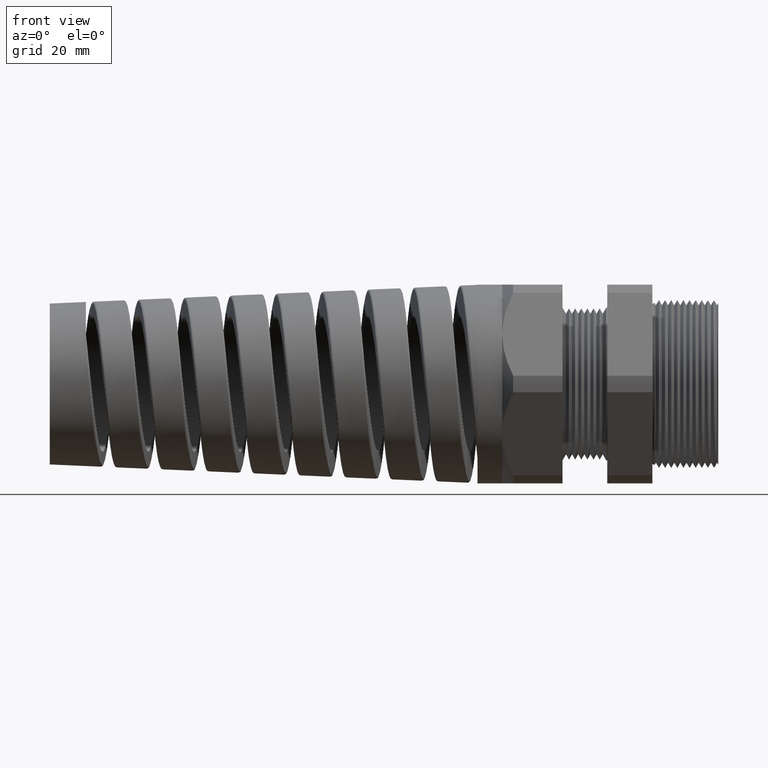
[diagram: clean part render]
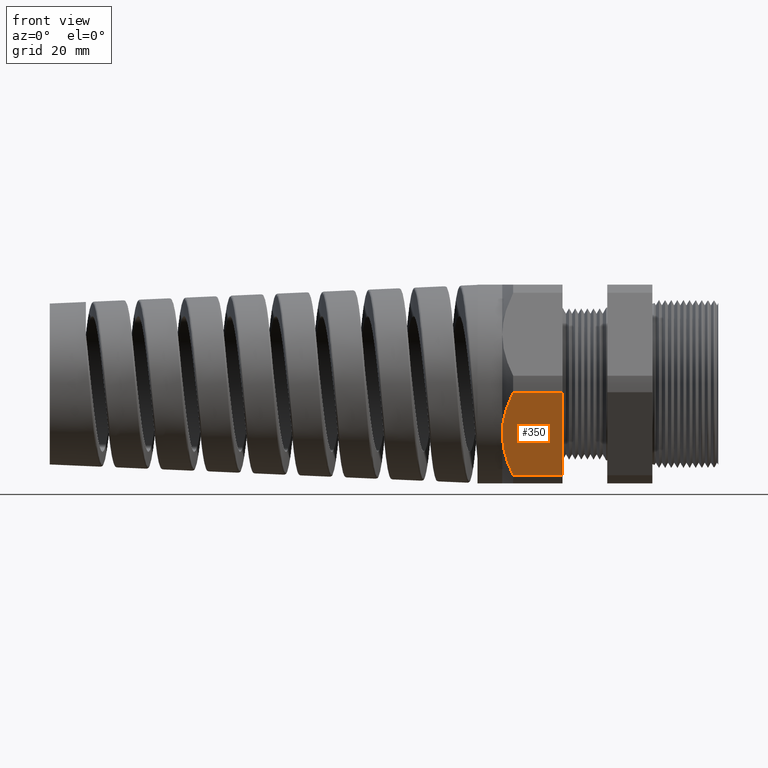
[diagram: same view with one face highlighted and labeled with its STEP entity id]
A machine part, front view. The second image highlights one B-rep face of the part: STEP entity #350.
In plain terms, the highlighted planar face has unit normal (0, -0.866, -0.5).
Its self-contained STEP definition (entity closure, byte-faithful):
#261 = VERTEX_POINT ( 'NONE', #2060 ) ;
#321 = EDGE_CURVE ( 'NONE', #322, #362, #2195, .T. ) ;
#322 = VERTEX_POINT ( 'NONE', #2191 ) ;
#323 = ORIENTED_EDGE ( 'NONE', *, *, #325, .F. ) ;
#325 = EDGE_CURVE ( 'NONE', #345, #322, #2190, .T. ) ;
#344 = EDGE_CURVE ( 'NONE', #345, #261, #3092, .T. ) ;
#345 = VERTEX_POINT ( 'NONE', #3088 ) ;
#350 = ADVANCED_FACE ( 'NONE', ( #3082 ), #3081, .T. ) ;
#351 = EDGE_LOOP ( 'NONE', ( #353, #354, #359, #363, #323 ) ) ;
#353 = ORIENTED_EDGE ( 'NONE', *, *, #344, .T. ) ;
#354 = ORIENTED_EDGE ( 'NONE', *, *, #355, .T. ) ;
#355 = EDGE_CURVE ( 'NONE', #261, #357, #3076, .T. ) ;
#357 = VERTEX_POINT ( 'NONE', #3075 ) ;
#359 = ORIENTED_EDGE ( 'NONE', *, *, #361, .T. ) ;
#361 = EDGE_CURVE ( 'NONE', #357, #362, #3121, .T. ) ;
#362 = VERTEX_POINT ( 'NONE', #3120 ) ;
#363 = ORIENTED_EDGE ( 'NONE', *, *, #321, .F. ) ;
#2060 = CARTESIAN_POINT ( 'NONE',  ( -1.220389763779527300, -0.7194909755756819800, -0.05380507471562113300 ) ) ;
#2187 = DIRECTION ( 'NONE',  ( 0.0000000000000000000, 0.5000000000000002200, -0.8660254037844383700 ) ) ;
#2188 = VECTOR ( 'NONE', #2187, 39.37007874015748100 ) ;
#2189 = CARTESIAN_POINT ( 'NONE',  ( -0.8981889763779525900, -0.4380415124598850400, -0.5412898445951638300 ) ) ;
#2190 = LINE ( 'NONE', #2189, #2188 ) ;
#2191 = CARTESIAN_POINT ( 'NONE',  ( -0.8981889763779525900, -0.4063420493440883500, -0.5961949252843792300 ) ) ;
#2192 = DIRECTION ( 'NONE',  ( -1.000000000000000000, 0.0000000000000000000, 0.0000000000000000000 ) ) ;
#2193 = VECTOR ( 'NONE', #2192, 39.37007874015748100 ) ;
#2194 = CARTESIAN_POINT ( 'NONE',  ( 0.1200000000000000900, -0.4063420493440883500, -0.5961949252843792300 ) ) ;
#2195 = LINE ( 'NONE', #2194, #2193 ) ;
#3075 = CARTESIAN_POINT ( 'NONE',  ( -1.291889763779527500, -0.5629165124598853900, -0.3250000000000003400 ) ) ;
#3076 = B_SPLINE_CURVE_WITH_KNOTS ( 'NONE', 3,
 ( #3131, #3130, #3129, #3128, #3127, #3126, #3125, #3124, #3123, #3122 ),
 .UNSPECIFIED., .F., .F.,
 ( 4, 2, 2, 2, 4 ),
 ( 2.483249165345060900E-007, 0.004082012451910152000, 0.006122894515406963900, 0.007143335547155370300, 0.008163776578903776700 ),
 .UNSPECIFIED. ) ;
#3077 = DIRECTION ( 'NONE',  ( 0.0000000000000000000, 0.5000000000000002200, -0.8660254037844384900 ) ) ;
#3078 = DIRECTION ( 'NONE',  ( 0.0000000000000000000, -0.8660254037844386000, -0.5000000000000003300 ) ) ;
#3079 = CARTESIAN_POINT ( 'NONE',  ( 0.1200000000000000900, -0.4063420493440884600, -0.5961949252843792300 ) ) ;
#3080 = AXIS2_PLACEMENT_3D ( 'NONE', #3079, #3078, #3077 ) ;
#3081 = PLANE ( 'NONE',  #3080 ) ;
#3082 = FACE_OUTER_BOUND ( 'NONE', #351, .T. ) ;
#3088 = CARTESIAN_POINT ( 'NONE',  ( -0.8981889763779525900, -0.7194909755756819800, -0.05380507471562112600 ) ) ;
#3089 = DIRECTION ( 'NONE',  ( -1.000000000000000000, 0.0000000000000000000, 0.0000000000000000000 ) ) ;
#3090 = VECTOR ( 'NONE', #3089, 39.37007874015748100 ) ;
#3091 = CARTESIAN_POINT ( 'NONE',  ( 0.1200000000000000900, -0.7194909755756819800, -0.05380507471562112600 ) ) ;
#3092 = LINE ( 'NONE', #3091, #3090 ) ;
#3112 = CARTESIAN_POINT ( 'NONE',  ( -1.220389763779527600, -0.4063420493440883500, -0.5961949252843792300 ) ) ;
#3113 = CARTESIAN_POINT ( 'NONE',  ( -1.242038095775945600, -0.4312810962751705300, -0.5529992289074006100 ) ) ;
#3114 = CARTESIAN_POINT ( 'NONE',  ( -1.260161853850736200, -0.4570573558384620200, -0.5083534377146962100 ) ) ;
#3115 = CARTESIAN_POINT ( 'NONE',  ( -1.285050007405226500, -0.5092737903524785500, -0.4179119201463270000 ) ) ;
#3116 = CARTESIAN_POINT ( 'NONE',  ( -1.291889763779527500, -0.5358248930679735400, -0.3719240612461093800 ) ) ;
#3117 = CARTESIAN_POINT ( 'NONE',  ( -1.291889763779527500, -0.5629165124598853900, -0.3250000000000003400 ) ) ;
#3120 = CARTESIAN_POINT ( 'NONE',  ( -1.220389763779527600, -0.4063420493440883500, -0.5961949252843792300 ) ) ;
#3121 = B_SPLINE_CURVE_WITH_KNOTS ( 'NONE', 3,
 ( #3117, #3116, #3115, #3114, #3113, #3112 ),
 .UNSPECIFIED., .F., .F.,
 ( 4, 2, 4 ),
 ( 0.008163776578903776700, 0.01224274182034618800, 0.01632170706178860000 ),
 .UNSPECIFIED. ) ;
#3122 = CARTESIAN_POINT ( 'NONE',  ( -1.291889763779527500, -0.5629165124598853900, -0.3250000000000003400 ) ) ;
#3123 = CARTESIAN_POINT ( 'NONE',  ( -1.291889763779526800, -0.5696940647084650600, -0.3132609351545069800 ) ) ;
#3124 = CARTESIAN_POINT ( 'NONE',  ( -1.291460853679630100, -0.5765336067434359000, -0.3014145008494350000 ) ) ;
#3125 = CARTESIAN_POINT ( 'NONE',  ( -1.289757307482530600, -0.5901225526399741500, -0.2778777561353257300 ) ) ;
#3126 = CARTESIAN_POINT ( 'NONE',  ( -1.288488242340941200, -0.5968650273424731500, -0.2661994473818494200 ) ) ;
#3127 = CARTESIAN_POINT ( 'NONE',  ( -1.283504729739887800, -0.6169458720203931900, -0.2314184041407928400 ) ) ;
#3128 = CARTESIAN_POINT ( 'NONE',  ( -1.278613598462209300, -0.6301376168794389200, -0.2085696318044403500 ) ) ;
#3129 = CARTESIAN_POINT ( 'NONE',  ( -1.259883036713412400, -0.6692072927766706800, -0.1408989681151864000 ) ) ;
#3130 = CARTESIAN_POINT ( 'NONE',  ( -1.242011327000795800, -0.6945827664818918800, -0.09694735839161447400 ) ) ;
#3131 = CARTESIAN_POINT ( 'NONE',  ( -1.220389763779527300, -0.7194909755756819800, -0.05380507471562113300 ) ) ;